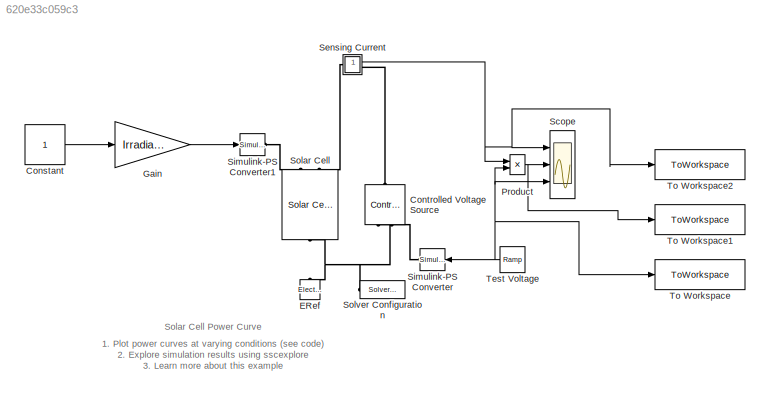
MODEL slx_620e33c059c3
KIND model
CONFIG AbsTol = 1e-3
CONFIG EnableMultiTasking = on
CONFIG FixedStep = auto
CONFIG MaxStep = 0.1
CONFIG MinStep = auto
CONFIG PreLoadFcn = irradiance = 1000;\ntemperature = 25;
CONFIG RelTol = 1e-3
CONFIG SampleTimeConstraint = Unconstrained
CONFIG Solver = VariableStepAuto
CONFIG SolverName = VariableStepAuto
CONFIG StartTime = 0.0
CONFIG StopFcn = ee_addSimlogTimeStamp(bdroot)
CONFIG StopTime = 60
BLOCK [Constant] Constant
  SampleTime = -1
  VectorParams1D = off
BLOCK [Reference] Controlled Voltage Source  REF=fl_lib/Electrical/Electrical Sources/Controlled Voltage
Source
  NameLocation = right
  Ports = [0, 0, 0, 0, 0, 1, 2]
  SourceBlock = fl_lib/Electrical/Electrical Sources/Controlled Voltage\nSource
  SourceProductBaseCode = MT,SS
  SourceType = Controlled Voltage\nSource
BLOCK [Reference] ERef  REF=fl_lib/Electrical/Electrical Elements/Electrical Reference
  NameLocation = right
  Ports = [0, 0, 0, 0, 0, 1]
  SourceBlock = fl_lib/Electrical/Electrical Elements/Electrical Reference
  SourceProductBaseCode = MT,SS
  SourceType = Electrical Reference
BLOCK [Gain] Gain
  Gain = Irradiance
BLOCK [Product] Product
  InputSameDT = on
  OutDataTypeStr = Inherit: Same as first input
  Ports = [2, 1]
  SaturateOnIntegerOverflow = on
BLOCK [Scope] Scope
  Floating = off
  NumInputPorts = 3
  Ports = [3]
  ScopeSpecificationString = Simulink.scopes.TimeScopeBlockCfg('CurrentConfiguration', extmgr.ConfigurationSet(extmgr.Configuration('Core','General UI',true),extmgr.Configuration('Core','Source UI',true),extmgr.Configuration('Sources','WiredSimulink',true,'DataLogging',true,'DataLoggingVariableName','I','DataLoggingSaveFormat','StructureWithTime','DataLoggingDecimation','1','DataLoggingDecimateData',true),extmgr.Configuration...<+2964ch>
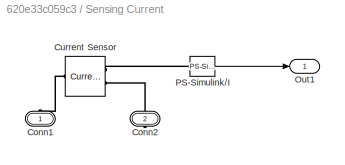
BLOCK [SubSystem] Sensing Current
  Ports = [0, 1, 0, 0, 0, 1, 1]
  RequestExecContextInheritance = off
BLOCK [PMIOPort] Sensing Current/Conn1
  NameLocation = right
  Side = Left
BLOCK [PMIOPort] Sensing Current/Conn2
  NameLocation = right
  Port = 2
  Side = Right
BLOCK [Reference] Sensing Current/Current Sensor  REF=fl_lib/Electrical/Electrical Sensors/Current Sensor
  Ports = [0, 0, 0, 0, 0, 1, 2]
  SourceBlock = fl_lib/Electrical/Electrical Sensors/Current Sensor
  SourceProductBaseCode = MT,SS
  SourceType = Current Sensor
BLOCK [Outport] Sensing Current/Out1
  VectorParamsAs1DForOutWhenUnconnected = off
BLOCK [Reference] Sensing Current/PS-Simulink//I  REF=nesl_utility/PS-Simulink
Converter
  Ports = [0, 1, 0, 0, 0, 1]
  SourceBlock = nesl_utility/PS-Simulink\nConverter
  SourceProductBaseCode = MT,SS
  SourceType = PS-Simulink\nConverter
BLOCK [Reference] Simulink-PS Converter  REF=nesl_utility/Simulink-PS
Converter
  Ports = [1, 0, 0, 0, 0, 0, 1]
  SourceBlock = nesl_utility/Simulink-PS\nConverter
  SourceProductBaseCode = MT,SS
  SourceType = Simulink-PS\nConverter
BLOCK [Reference] Simulink-PS Converter1  REF=nesl_utility/Simulink-PS
Converter
  NameLocation = top
  Ports = [1, 0, 0, 0, 0, 0, 1]
  SourceBlock = nesl_utility/Simulink-PS\nConverter
  SourceProductBaseCode = MT,SS
  SourceType = Simulink-PS\nConverter
BLOCK [Reference] Solar Cell  REF=ee_lib/Sources/Solar Cell
  NameLocation = left
  Ports = [0, 0, 0, 0, 0, 2, 1]
  SourceBlock = ee_lib/Sources/Solar Cell
  SourceProductBaseCode = PS
  SourceType = Solar Cell
BLOCK [Reference] Solver Configuration  REF=nesl_utility/Solver
Configuration
  NameLocation = top
  Ports = [0, 0, 0, 0, 0, 0, 1]
  SourceBlock = nesl_utility/Solver\nConfiguration
  SourceProductBaseCode = MT,SS
  SourceType = Solver\nConfiguration
BLOCK [Reference] Test Voltage  REF=simulink/Sources/Ramp
  Ports = [0, 1]
  SourceBlock = simulink/Sources/Ramp
  SourceProductBaseCode = SL
  SourceType = Ramp
BLOCK [ToWorkspace] To Workspace
  FixptAsFi = on
  MaxDataPoints = inf
  Ports = [1]
  SampleTime = -1
  VariableName = voltage
BLOCK [ToWorkspace] To Workspace1
  FixptAsFi = on
  MaxDataPoints = inf
  Ports = [1]
  SampleTime = -1
  VariableName = power
BLOCK [ToWorkspace] To Workspace2
  FixptAsFi = on
  MaxDataPoints = inf
  Ports = [1]
  SampleTime = -1
  VariableName = current
ANNOTATION (root): 1. Plot power curves at varying conditions ( see code ) 2. Explore simulation results using sscexplore 3. Learn more about this example
ANNOTATION (root): Solar Cell Power Curve
LINE Constant:1 -> Gain:1
LINE Gain:1 -> Simulink-PS Converter1:1
NET Product:1 -> Scope:2, To Workspace1:1
LINE Sensing Current/PS-Simulink//I:1 -> Sensing Current/Out1:1
NET Sensing Current:1 -> Product:1, Scope:1, To Workspace2:1
NET Test Voltage:1 -> Product:2, Scope:3, Simulink-PS Converter:1, To Workspace:1
PLINE Controlled Voltage Source:LConn1 -- Sensing Current:RConn1
PLINE Controlled Voltage Source:RConn1 -- Simulink-PS Converter:RConn1
PNET net1: Controlled Voltage Source:RConn2 -- ERef:LConn1 -- Solar Cell:RConn1 -- Solver Configuration:RConn1
PLINE Sensing Current/Conn1:RConn1 -- Sensing Current/Current Sensor:LConn1
PLINE Sensing Current/Conn2:RConn1 -- Sensing Current/Current Sensor:RConn2
PLINE Sensing Current/Current Sensor:RConn1 -- Sensing Current/PS-Simulink//I:LConn1
PLINE Sensing Current:LConn1 -- Solar Cell:LConn2
PLINE Simulink-PS Converter1:RConn1 -- Solar Cell:LConn1
note: NET lines group one-source signal fan-out (src -> all destinations, sorted); 1:1 wires keep LINE; PNET lines group multi-terminal physical nets as a canonical sorted terminal list (undirected conserving connections); 2-terminal nets keep the pairwise PLINE form
